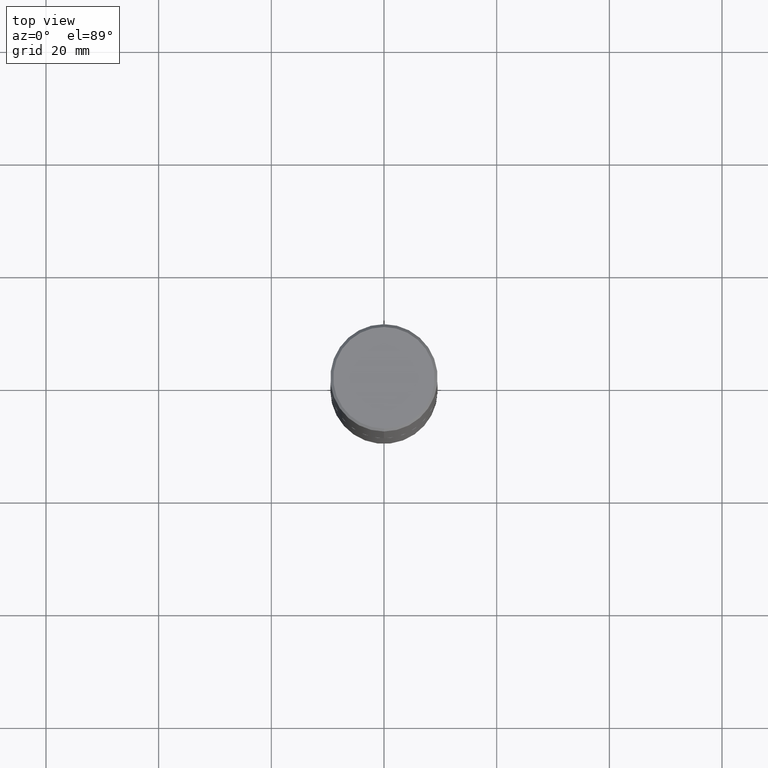
[diagram: clean part render]
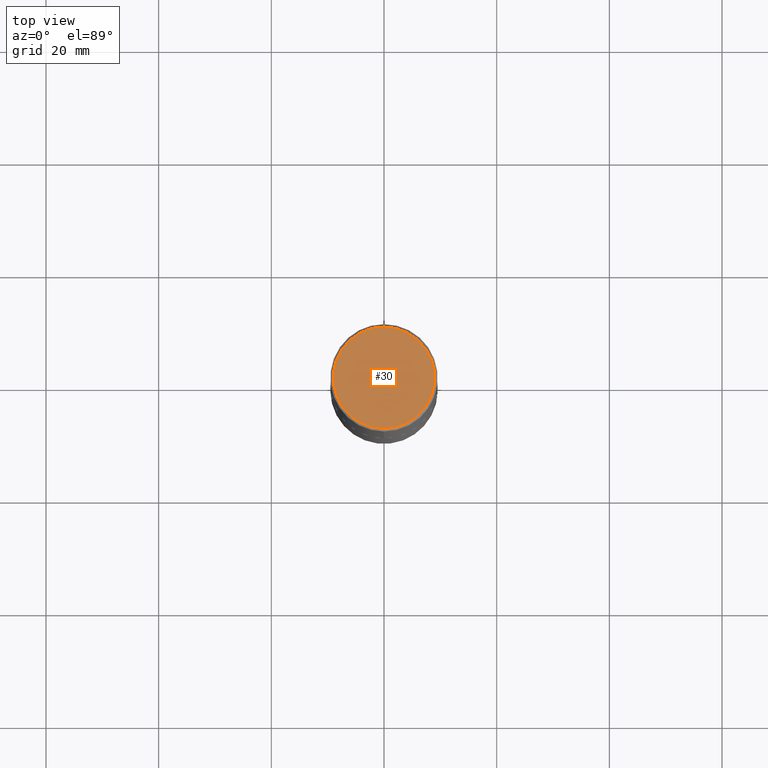
[diagram: same view with one face highlighted and labeled with its STEP entity id]
A machine part, top view. The second image highlights one B-rep face of the part: STEP entity #30.
In plain terms, the highlighted planar face has unit normal (0, -0, -1).
Its self-contained STEP definition (entity closure, byte-faithful):
#3 = CIRCLE ( 'NONE', #283, 0.3549999999999999822 ) ;
#20 = CIRCLE ( 'NONE', #370, 0.3549999999999999822 ) ;
#22 = EDGE_CURVE ( 'NONE', #230, #90, #3, .T. ) ;
#23 = CARTESIAN_POINT ( 'NONE',  ( -2.504081769186608216E-15, -0.3549999999999999822, 1.285848347115290366E-15 ) ) ;
#30 = ADVANCED_FACE ( 'NONE', ( #110 ), #329, .F. ) ;
#47 = CARTESIAN_POINT ( 'NONE',  ( 2.478951750578624209E-15, 0.3549999999999999822, -1.215853765202481601E-15 ) ) ;
#52 = CARTESIAN_POINT ( 'NONE',  ( -1.141397163745304909E-45, 1.628849886601155835E-31, 4.666305460853910467E-17 ) ) ;
#78 = EDGE_LOOP ( 'NONE', ( #255, #261 ) ) ;
#83 = DIRECTION ( 'NONE',  ( -2.446040391741596606E-29, 3.490662795793665557E-15, 1.000000000000000000 ) ) ;
#90 = VERTEX_POINT ( 'NONE', #331 ) ;
#110 = FACE_OUTER_BOUND ( 'NONE', #78, .T. ) ;
#175 = DIRECTION ( 'NONE',  ( 6.982962677686265922E-15, 1.000000000000000000, -3.490662795793665557E-15 ) ) ;
#230 = VERTEX_POINT ( 'NONE', #23 ) ;
#240 = EDGE_CURVE ( 'NONE', #90, #230, #20, .T. ) ;
#244 = AXIS2_PLACEMENT_3D ( 'NONE', #47, #412, #175 ) ;
#247 = DIRECTION ( 'NONE',  ( -2.446040391741596606E-29, 3.490662795793665557E-15, 1.000000000000000000 ) ) ;
#255 = ORIENTED_EDGE ( 'NONE', *, *, #240, .T. ) ;
#261 = ORIENTED_EDGE ( 'NONE', *, *, #22, .T. ) ;
#283 = AXIS2_PLACEMENT_3D ( 'NONE', #363, #247, #401 ) ;
#329 = PLANE ( 'NONE',  #244 ) ;
#331 = CARTESIAN_POINT ( 'NONE',  ( 2.548781377355487113E-15, 0.3549999999999999822, -1.192522237898212341E-15 ) ) ;
#363 = CARTESIAN_POINT ( 'NONE',  ( -1.141397163745304909E-45, 1.628849886601155835E-31, 4.666305460853910467E-17 ) ) ;
#370 = AXIS2_PLACEMENT_3D ( 'NONE', #52, #83, #416 ) ;
#401 = DIRECTION ( 'NONE',  ( -6.982962677686265922E-15, -1.000000000000000000, 3.490662795793665557E-15 ) ) ;
#412 = DIRECTION ( 'NONE',  ( 2.446040391741596045E-29, -3.490662795793665557E-15, -1.000000000000000000 ) ) ;
#416 = DIRECTION ( 'NONE',  ( -6.982962677686265922E-15, -1.000000000000000000, 3.490662795793665557E-15 ) ) ;